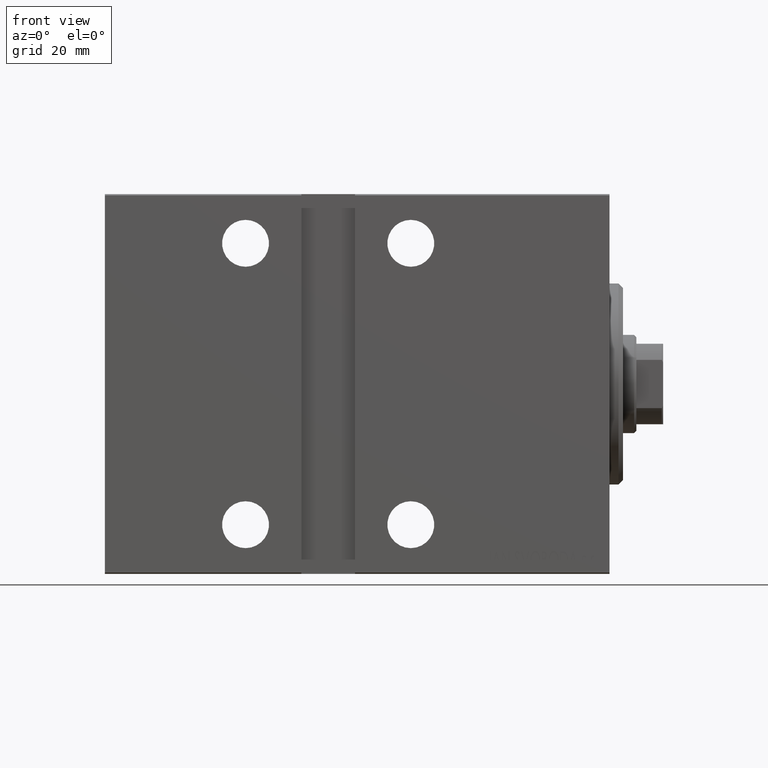
[diagram: clean part render]
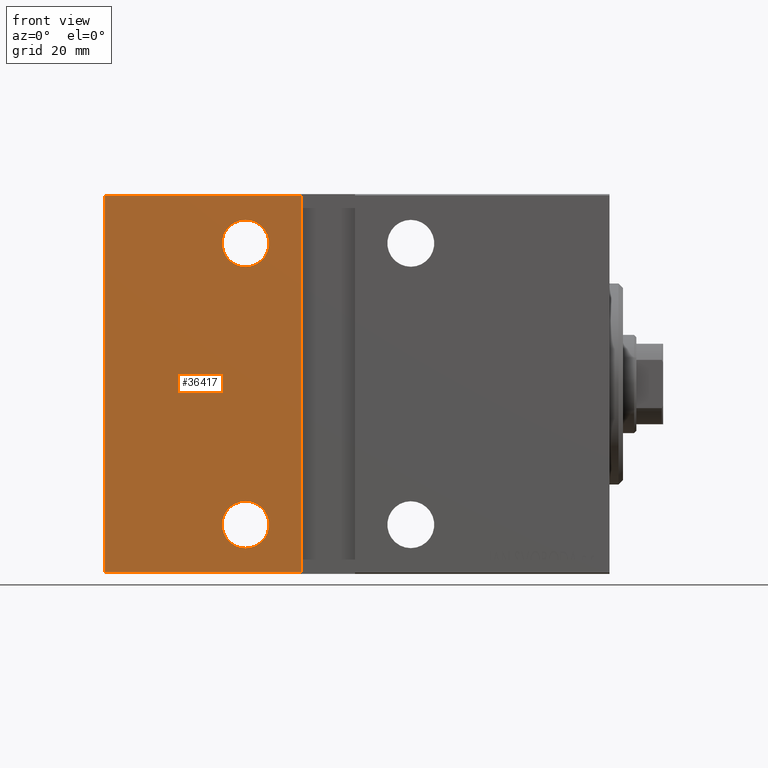
[diagram: same view with one face highlighted and labeled with its STEP entity id]
A machine part, front view. The second image highlights one B-rep face of the part: STEP entity #36417.
In plain terms, the highlighted planar face has unit normal (-0, 1, -0).
Its self-contained STEP definition (entity closure, byte-faithful):
#149 = DIRECTION ( 'NONE',  ( 0.000000000000000000, 1.632680918566406300E-16, -1.000000000000000000 ) ) ;
#167 = ORIENTED_EDGE ( 'NONE', *, *, #16490, .T. ) ;
#735 = VERTEX_POINT ( 'NONE', #39698 ) ;
#912 = AXIS2_PLACEMENT_3D ( 'NONE', #23364, #10508, #24029 ) ;
#1187 = DIRECTION ( 'NONE',  ( 0.000000000000000000, 0.000000000000000000, -1.000000000000000000 ) ) ;
#1891 = AXIS2_PLACEMENT_3D ( 'NONE', #21439, #34771, #1187 ) ;
#2285 = DIRECTION ( 'NONE',  ( 0.000000000000000000, 0.000000000000000000, -1.000000000000000000 ) ) ;
#2729 = LINE ( 'NONE', #6217, #32550 ) ;
#3189 = FACE_OUTER_BOUND ( 'NONE', #15906, .T. ) ;
#3553 = EDGE_CURVE ( 'NONE', #14047, #35534, #2729, .T. ) ;
#3604 = AXIS2_PLACEMENT_3D ( 'NONE', #8235, #4526, #38331 ) ;
#3751 = EDGE_CURVE ( 'NONE', #39561, #735, #14418, .T. ) ;
#4526 = DIRECTION ( 'NONE',  ( 0.000000000000000000, -1.000000000000000000, -1.632680918566406300E-16 ) ) ;
#4742 = ORIENTED_EDGE ( 'NONE', *, *, #14499, .T. ) ;
#5234 = DIRECTION ( 'NONE',  ( 0.000000000000000000, -1.632680918566406300E-16, 1.000000000000000000 ) ) ;
#5772 = DIRECTION ( 'NONE',  ( 0.000000000000000000, -1.000000000000000000, -1.632680918566406300E-16 ) ) ;
#6217 = CARTESIAN_POINT ( 'NONE',  ( 113.0000000000000000, 31.50000000000000000, 42.19999999999998863 ) ) ;
#6254 = DIRECTION ( 'NONE',  ( 0.000000000000000000, -1.000000000000000000, -1.632680918566406300E-16 ) ) ;
#8235 = CARTESIAN_POINT ( 'NONE',  ( 81.50000000000000000, 31.50000000000000000, 31.49999999999998579 ) ) ;
#10508 = DIRECTION ( 'NONE',  ( 0.000000000000000000, -1.000000000000000000, -1.632680918566406300E-16 ) ) ;
#14047 = VERTEX_POINT ( 'NONE', #25347 ) ;
#14418 = CIRCLE ( 'NONE', #1891, 5.250000000000004441 ) ;
#14442 = EDGE_LOOP ( 'NONE', ( #32885, #4742 ) ) ;
#14499 = EDGE_CURVE ( 'NONE', #19223, #42019, #17474, .T. ) ;
#14598 = CARTESIAN_POINT ( 'NONE',  ( 69.00000000000000000, 31.50000000000001421, -42.19999999999998863 ) ) ;
#15074 = ORIENTED_EDGE ( 'NONE', *, *, #38055, .F. ) ;
#15906 = EDGE_LOOP ( 'NONE', ( #15074, #26757, #24697, #28957 ) ) ;
#16026 = DIRECTION ( 'NONE',  ( 1.000000000000000000, 0.000000000000000000, 0.000000000000000000 ) ) ;
#16490 = EDGE_CURVE ( 'NONE', #735, #39561, #16839, .T. ) ;
#16839 = CIRCLE ( 'NONE', #3604, 5.250000000000004441 ) ;
#17150 = VECTOR ( 'NONE', #19332, 1000.000000000000000 ) ;
#17474 = CIRCLE ( 'NONE', #23026, 5.250000000000004441 ) ;
#18262 = VERTEX_POINT ( 'NONE', #30097 ) ;
#18349 = LINE ( 'NONE', #27761, #25898 ) ;
#19223 = VERTEX_POINT ( 'NONE', #27492 ) ;
#19332 = DIRECTION ( 'NONE',  ( -1.000000000000000000, 0.000000000000000000, 0.000000000000000000 ) ) ;
#19757 = LINE ( 'NONE', #29817, #17150 ) ;
#20540 = CARTESIAN_POINT ( 'NONE',  ( 81.50000000000001421, 31.50000000000001421, -26.25000000000001776 ) ) ;
#20879 = CARTESIAN_POINT ( 'NONE',  ( 113.0000000000000000, 31.50000000000000000, 42.19999999999998863 ) ) ;
#21439 = CARTESIAN_POINT ( 'NONE',  ( 81.50000000000000000, 31.50000000000000000, 31.49999999999998579 ) ) ;
#21890 = ORIENTED_EDGE ( 'NONE', *, *, #3751, .T. ) ;
#21966 = EDGE_CURVE ( 'NONE', #14047, #34321, #18349, .T. ) ;
#22772 = CARTESIAN_POINT ( 'NONE',  ( 81.50000000000001421, 31.50000000000001421, -31.50000000000002132 ) ) ;
#23026 = AXIS2_PLACEMENT_3D ( 'NONE', #22772, #5772, #2285 ) ;
#23364 = CARTESIAN_POINT ( 'NONE',  ( 81.50000000000001421, 31.50000000000001421, -31.50000000000002132 ) ) ;
#23849 = CARTESIAN_POINT ( 'NONE',  ( 81.50000000000000000, 31.50000000000000000, 36.74999999999999289 ) ) ;
#23951 = EDGE_CURVE ( 'NONE', #42019, #19223, #31543, .T. ) ;
#24029 = DIRECTION ( 'NONE',  ( 0.000000000000000000, 0.000000000000000000, -1.000000000000000000 ) ) ;
#24697 = ORIENTED_EDGE ( 'NONE', *, *, #21966, .F. ) ;
#25347 = CARTESIAN_POINT ( 'NONE',  ( 68.99999999999998579, 31.50000000000000000, 42.19999999999999574 ) ) ;
#25898 = VECTOR ( 'NONE', #37800, 1000.000000000000000 ) ;
#26100 = FACE_BOUND ( 'NONE', #33455, .T. ) ;
#26323 = FACE_BOUND ( 'NONE', #14442, .T. ) ;
#26539 = PLANE ( 'NONE',  #36618 ) ;
#26757 = ORIENTED_EDGE ( 'NONE', *, *, #37607, .T. ) ;
#27492 = CARTESIAN_POINT ( 'NONE',  ( 81.50000000000001421, 31.50000000000001421, -36.75000000000002842 ) ) ;
#27761 = CARTESIAN_POINT ( 'NONE',  ( 69.00000000000000000, 31.50000000000001421, -42.50000000000002842 ) ) ;
#28957 = ORIENTED_EDGE ( 'NONE', *, *, #3553, .T. ) ;
#29817 = CARTESIAN_POINT ( 'NONE',  ( 113.0000000000000000, 31.50000000000001421, -42.19999999999998863 ) ) ;
#30097 = CARTESIAN_POINT ( 'NONE',  ( 113.0000000000000000, 31.50000000000001421, -42.19999999999998863 ) ) ;
#31115 = VECTOR ( 'NONE', #5234, 1000.000000000000000 ) ;
#31543 = CIRCLE ( 'NONE', #912, 5.250000000000004441 ) ;
#32061 = CARTESIAN_POINT ( 'NONE',  ( 113.0000000000000000, 31.50000000000001421, -42.50000000000000711 ) ) ;
#32550 = VECTOR ( 'NONE', #16026, 1000.000000000000000 ) ;
#32885 = ORIENTED_EDGE ( 'NONE', *, *, #23951, .T. ) ;
#33455 = EDGE_LOOP ( 'NONE', ( #21890, #167 ) ) ;
#34321 = VERTEX_POINT ( 'NONE', #14598 ) ;
#34771 = DIRECTION ( 'NONE',  ( 0.000000000000000000, -1.000000000000000000, -1.632680918566406300E-16 ) ) ;
#35534 = VERTEX_POINT ( 'NONE', #20879 ) ;
#36417 = ADVANCED_FACE ( 'NONE', ( #26323, #26100, #3189 ), #26539, .F. ) ;
#36618 = AXIS2_PLACEMENT_3D ( 'NONE', #42678, #6254, #149 ) ;
#37607 = EDGE_CURVE ( 'NONE', #18262, #34321, #19757, .T. ) ;
#37800 = DIRECTION ( 'NONE',  ( 1.632680918566406054E-16, 1.632680918566406054E-16, -1.000000000000000000 ) ) ;
#38055 = EDGE_CURVE ( 'NONE', #18262, #35534, #38604, .T. ) ;
#38331 = DIRECTION ( 'NONE',  ( 0.000000000000000000, 0.000000000000000000, -1.000000000000000000 ) ) ;
#38604 = LINE ( 'NONE', #32061, #31115 ) ;
#39561 = VERTEX_POINT ( 'NONE', #23849 ) ;
#39698 = CARTESIAN_POINT ( 'NONE',  ( 81.50000000000000000, 31.50000000000000000, 26.24999999999998224 ) ) ;
#42019 = VERTEX_POINT ( 'NONE', #20540 ) ;
#42678 = CARTESIAN_POINT ( 'NONE',  ( 113.0000000000000000, 31.50000000000001421, -42.50000000000000711 ) ) ;